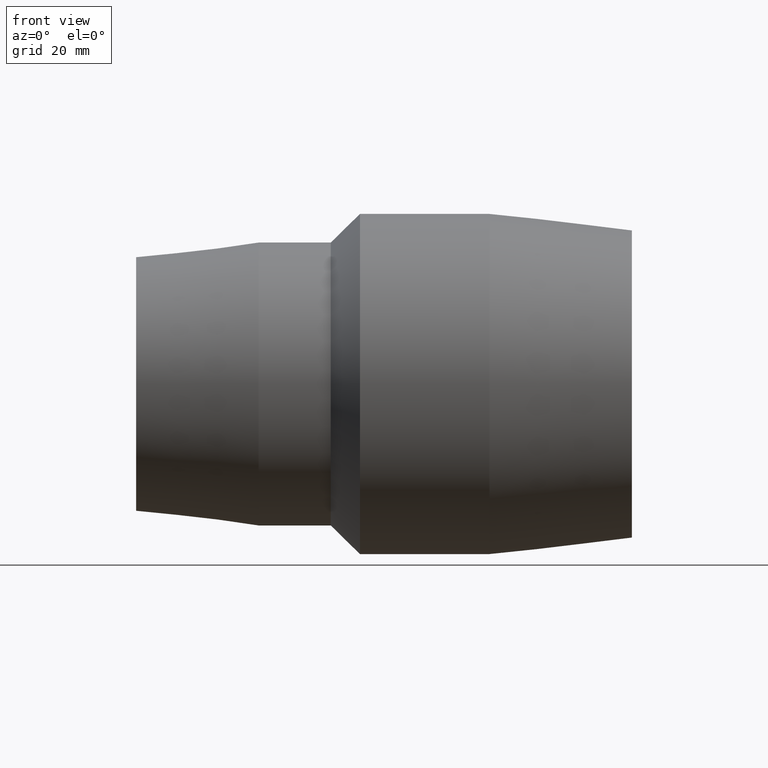
[diagram: clean part render]
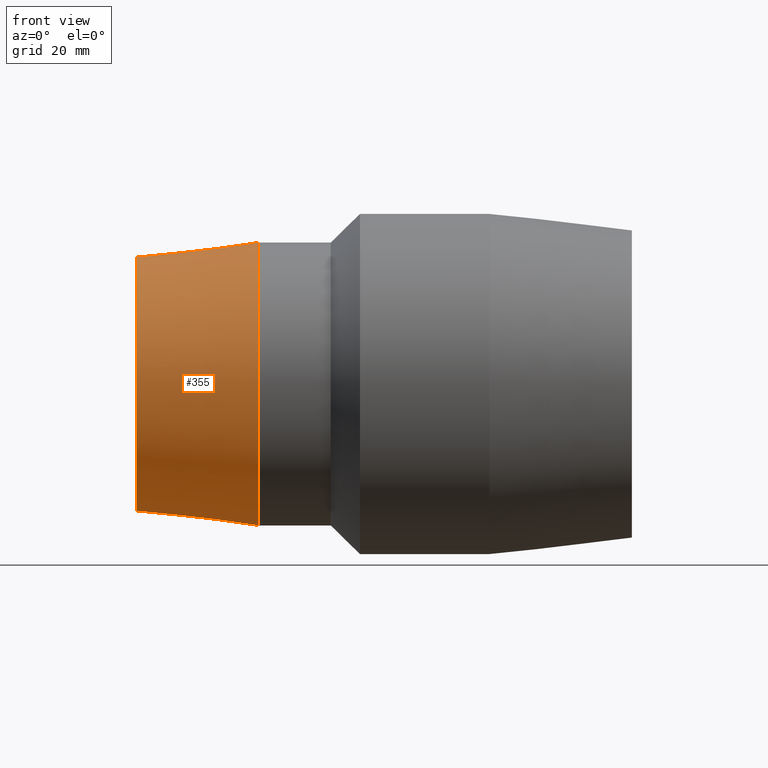
[diagram: same view with one face highlighted and labeled with its STEP entity id]
A machine part, front view. The second image highlights one B-rep face of the part: STEP entity #355.
In plain terms, the highlighted conical surface has half-angle 6.597 deg.
Its self-contained STEP definition (entity closure, byte-faithful):
#16=B_SPLINE_CURVE_WITH_KNOTS('',3,(#609,#610,#611,#612,#613,#614,#615,
#616,#617,#618,#619,#620,#621,#622,#623,#624,#625,#626,#627,#628,#629,#630,
#631,#632,#633,#634,#635,#636,#637,#638,#639,#640,#641,#642),
 .UNSPECIFIED.,.T.,.F.,(4,2,2,2,2,2,2,2,2,2,2,2,2,2,2,2,4),(0.,0.362414573332087,
0.724829146664174,1.09046005587902,1.45609096509386,1.82172187430871,2.18735278352355,
2.54976735685564,2.91218193018773,3.30493244340624,3.69768295662475,4.07976131210952,
4.46183966759429,4.84391802307906,5.22599637856383,5.61874689178234,6.01149740500086),
 .UNSPECIFIED.);
#24=CONICAL_SURFACE('',#417,32.3,6.5967382978942);
#54=FACE_BOUND('',#158,.T.);
#55=FACE_BOUND('',#159,.T.);
#97=FACE_OUTER_BOUND('',#157,.T.);
#157=EDGE_LOOP('',(#310));
#158=EDGE_LOOP('',(#311));
#159=EDGE_LOOP('',(#312));
#171=CIRCLE('',#382,34.);
#188=CIRCLE('',#416,30.6);
#200=VERTEX_POINT('',#608);
#202=VERTEX_POINT('',#646);
#219=VERTEX_POINT('',#697);
#231=EDGE_CURVE('',#200,#200,#16,.T.);
#233=EDGE_CURVE('',#202,#202,#171,.T.);
#250=EDGE_CURVE('',#219,#219,#188,.T.);
#310=ORIENTED_EDGE('',*,*,#233,.F.);
#311=ORIENTED_EDGE('',*,*,#231,.T.);
#312=ORIENTED_EDGE('',*,*,#250,.T.);
#355=ADVANCED_FACE('',(#97,#54,#55),#24,.T.);
#382=AXIS2_PLACEMENT_3D('',#647,#468,#469);
#416=AXIS2_PLACEMENT_3D('',#698,#536,#537);
#417=AXIS2_PLACEMENT_3D('',#699,#538,#539);
#468=DIRECTION('center_axis',(1.,1.83697019872103E-16,0.));
#469=DIRECTION('ref_axis',(0.,0.,-1.));
#536=DIRECTION('center_axis',(1.,1.83697019872103E-16,0.));
#537=DIRECTION('ref_axis',(0.,0.,-1.));
#538=DIRECTION('center_axis',(1.,1.83697019872103E-16,0.));
#539=DIRECTION('ref_axis',(-2.07668631751007E-16,1.,0.));
#608=CARTESIAN_POINT('',(-45.6904208692048,30.6223132793092,9.94597520817799));
#609=CARTESIAN_POINT('Ctrl Pts',(-45.6904208692049,30.6223132793092,9.94597520817799));
#610=CARTESIAN_POINT('Ctrl Pts',(-46.8904713282988,30.4903195410762,9.90310429780208));
#611=CARTESIAN_POINT('Ctrl Pts',(-48.1665546044909,30.43108303303,9.6178400800856));
#612=CARTESIAN_POINT('Ctrl Pts',(-50.4989458882397,30.4658303082088,8.55832356545271));
#613=CARTESIAN_POINT('Ctrl Pts',(-51.5554605429903,30.5548610541288,7.78436955895845));
#614=CARTESIAN_POINT('Ctrl Pts',(-53.2196241658329,30.753269403495,6.02919421046973));
#615=CARTESIAN_POINT('Ctrl Pts',(-53.9394771326075,30.8759095377823,4.92519783558063));
#616=CARTESIAN_POINT('Ctrl Pts',(-54.8928651975241,31.0540003488545,2.52014434422283));
#617=CARTESIAN_POINT('Ctrl Pts',(-55.1262768875917,31.1058047136799,1.21876969738282));
#618=CARTESIAN_POINT('Ctrl Pts',(-55.1262768875917,31.1058047136799,-1.21876969738282));
#619=CARTESIAN_POINT('Ctrl Pts',(-54.8928651975241,31.0540003488545,-2.52014434422284));
#620=CARTESIAN_POINT('Ctrl Pts',(-53.9394771326075,30.8759095377823,-4.92519783558064));
#621=CARTESIAN_POINT('Ctrl Pts',(-53.2196241658329,30.753269403495,-6.02919421046973));
#622=CARTESIAN_POINT('Ctrl Pts',(-51.5554605429903,30.5548610541288,-7.78436955895845));
#623=CARTESIAN_POINT('Ctrl Pts',(-50.4989458882397,30.4658303082088,-8.55832356545271));
#624=CARTESIAN_POINT('Ctrl Pts',(-48.1665546044909,30.43108303303,-9.6178400800856));
#625=CARTESIAN_POINT('Ctrl Pts',(-46.8904713282989,30.4903195410762,-9.90310429780208));
#626=CARTESIAN_POINT('Ctrl Pts',(-44.389920093632,30.7653555636082,-9.99243463142214));
#627=CARTESIAN_POINT('Ctrl Pts',(-43.0162337304701,31.0109097111017,-9.76237102847286));
#628=CARTESIAN_POINT('Ctrl Pts',(-40.5049337493566,31.6111435484049,-8.75679477036458));
#629=CARTESIAN_POINT('Ctrl Pts',(-39.3657684283764,31.9603897938408,-7.98192208609857));
#630=CARTESIAN_POINT('Ctrl Pts',(-37.5921537412787,32.5607490748561,-6.20301122529098));
#631=CARTESIAN_POINT('Ctrl Pts',(-36.8279449946825,32.8538210684717,-5.08719463038779));
#632=CARTESIAN_POINT('Ctrl Pts',(-35.8073479321492,33.260029194861,-2.62292775667141));
#633=CARTESIAN_POINT('Ctrl Pts',(-35.5516509594116,33.3695369638776,-1.27359451828257));
#634=CARTESIAN_POINT('Ctrl Pts',(-35.5516509594116,33.3695369638776,1.27359451828256));
#635=CARTESIAN_POINT('Ctrl Pts',(-35.8073479321492,33.260029194861,2.62292775667141));
#636=CARTESIAN_POINT('Ctrl Pts',(-36.8279449946825,32.8538210684716,5.08719463038779));
#637=CARTESIAN_POINT('Ctrl Pts',(-37.5921537412787,32.5607490748561,6.20301122529098));
#638=CARTESIAN_POINT('Ctrl Pts',(-39.3657684283764,31.9603897938408,7.98192208609857));
#639=CARTESIAN_POINT('Ctrl Pts',(-40.5049337493566,31.6111435484049,8.75679477036457));
#640=CARTESIAN_POINT('Ctrl Pts',(-43.0162337304701,31.0109097111017,9.76237102847286));
#641=CARTESIAN_POINT('Ctrl Pts',(-44.389920093632,30.7653555636082,9.99243463142214));
#642=CARTESIAN_POINT('Ctrl Pts',(-45.6904208692049,30.6223132793092,9.94597520817799));
#646=CARTESIAN_POINT('',(-30.1,34.,0.));
#647=CARTESIAN_POINT('Origin',(-30.1,5.40069238423983E-15,0.));
#697=CARTESIAN_POINT('',(-59.5,30.6,0.));
#698=CARTESIAN_POINT('Origin',(-59.5,9.86076131526265E-31,0.));
#699=CARTESIAN_POINT('Origin',(-44.8,2.70034619211991E-15,0.));